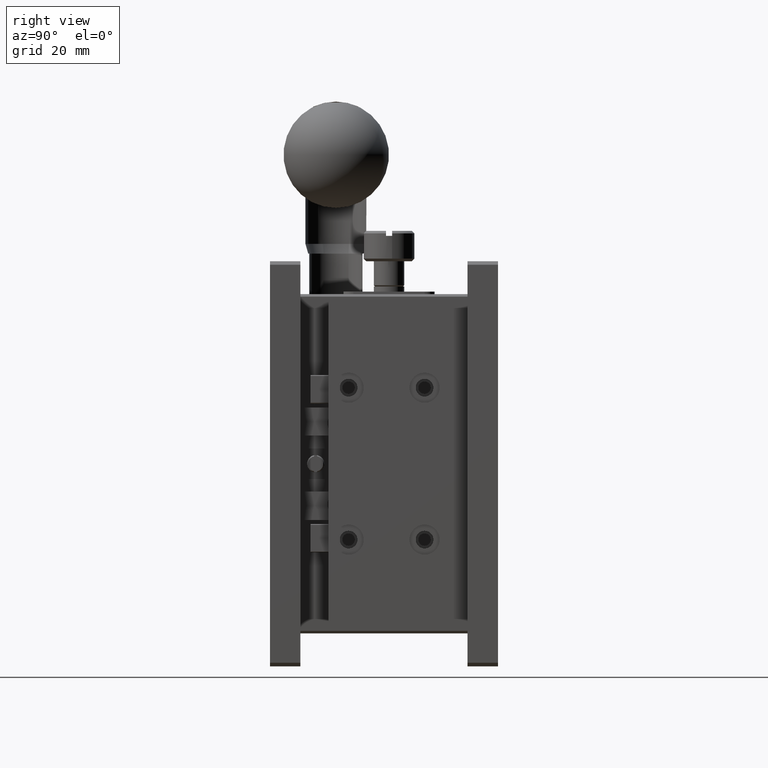
[diagram: clean part render]
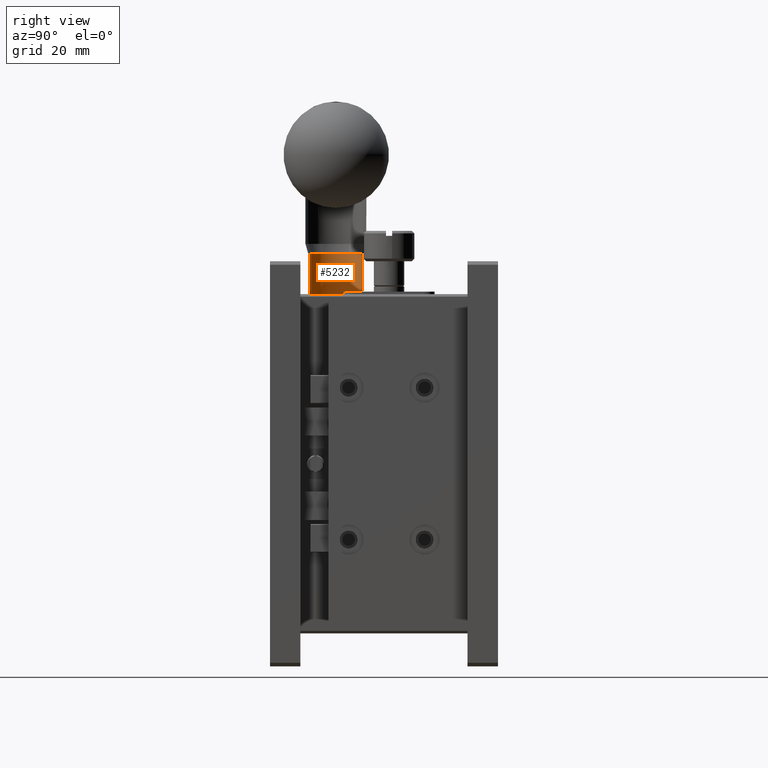
[diagram: same view with one face highlighted and labeled with its STEP entity id]
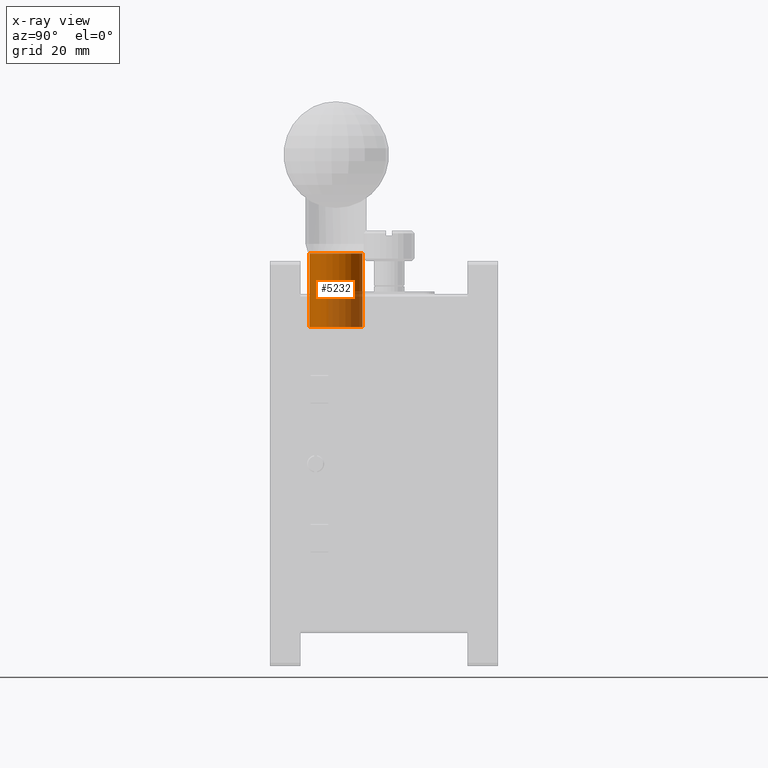
[diagram: x-ray of the same camera — body ghosted, the highlighted face saturated]
A machine part, right view. The second image highlights one B-rep face of the part: STEP entity #5232.
The next image is the same camera in x-ray: the body ghosted, the highlighted face saturated — about 30% of this face is hidden behind the body in this view.
In plain terms, the highlighted cylindrical surface (bore or boss wall) has radius 5.25 mm, axis along (0, 0, -1).
Its self-contained STEP definition (entity closure, byte-faithful):
#227 = ORIENTED_EDGE ( 'NONE', *, *, #12698, .T. ) ;
#746 = DIRECTION ( 'NONE',  ( 0.000000000000000000, -1.000000000000000000, 0.000000000000000000 ) ) ;
#759 = DIRECTION ( 'NONE',  ( -0.000000000000000000, -6.072288236963999812E-17, 1.000000000000000000 ) ) ;
#977 = CARTESIAN_POINT ( 'NONE',  ( 40.00000000000000000, 13.00000000000000533, -13.00200000000000600 ) ) ;
#1856 = CARTESIAN_POINT ( 'NONE',  ( 40.00000000000000000, 13.00000000000000355, 1.497999999999999332 ) ) ;
#2015 = CARTESIAN_POINT ( 'NONE',  ( 40.00000000000000000, 7.750000000000004441, -13.00200000000000600 ) ) ;
#3376 = ORIENTED_EDGE ( 'NONE', *, *, #5346, .T. ) ;
#5232 = ADVANCED_FACE ( 'NONE', ( #13976, #8330 ), #13142, .T. ) ;
#5346 = EDGE_CURVE ( 'NONE', #12238, #12238, #10414, .T. ) ;
#5751 = EDGE_LOOP ( 'NONE', ( #227 ) ) ;
#7325 = AXIS2_PLACEMENT_3D ( 'NONE', #1856, #9807, #14344 ) ;
#8330 = FACE_OUTER_BOUND ( 'NONE', #5751, .T. ) ;
#9431 = CIRCLE ( 'NONE', #10602, 5.250000000000000000 ) ;
#9807 = DIRECTION ( 'NONE',  ( 0.000000000000000000, 6.072288236963999812E-17, -1.000000000000000000 ) ) ;
#9928 = AXIS2_PLACEMENT_3D ( 'NONE', #10624, #14194, #746 ) ;
#10414 = CIRCLE ( 'NONE', #7325, 5.250000000000000000 ) ;
#10602 = AXIS2_PLACEMENT_3D ( 'NONE', #977, #759, #14581 ) ;
#10624 = CARTESIAN_POINT ( 'NONE',  ( 40.00000000000000000, 13.00000000000000533, -19.50000000000000355 ) ) ;
#11340 = CARTESIAN_POINT ( 'NONE',  ( 40.00000000000000000, 7.750000000000002665, 1.497999999999999110 ) ) ;
#11893 = EDGE_LOOP ( 'NONE', ( #3376 ) ) ;
#12194 = VERTEX_POINT ( 'NONE', #2015 ) ;
#12238 = VERTEX_POINT ( 'NONE', #11340 ) ;
#12698 = EDGE_CURVE ( 'NONE', #12194, #12194, #9431, .T. ) ;
#13142 = CYLINDRICAL_SURFACE ( 'NONE', #9928, 5.250000000000000000 ) ;
#13976 = FACE_OUTER_BOUND ( 'NONE', #11893, .T. ) ;
#14194 = DIRECTION ( 'NONE',  ( 0.000000000000000000, 6.072288236963999812E-17, -1.000000000000000000 ) ) ;
#14344 = DIRECTION ( 'NONE',  ( 0.000000000000000000, -1.000000000000000000, -4.130293990420969390E-17 ) ) ;
#14581 = DIRECTION ( 'NONE',  ( 0.000000000000000000, -1.000000000000000000, 0.000000000000000000 ) ) ;